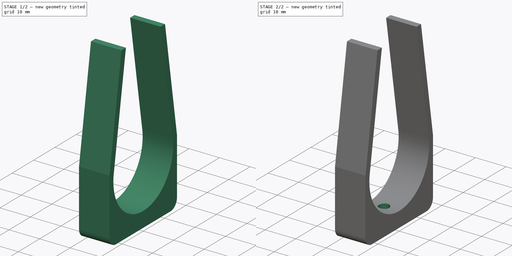
[diagram: build sequence overview — one tinted view per stage of 2, left to right]
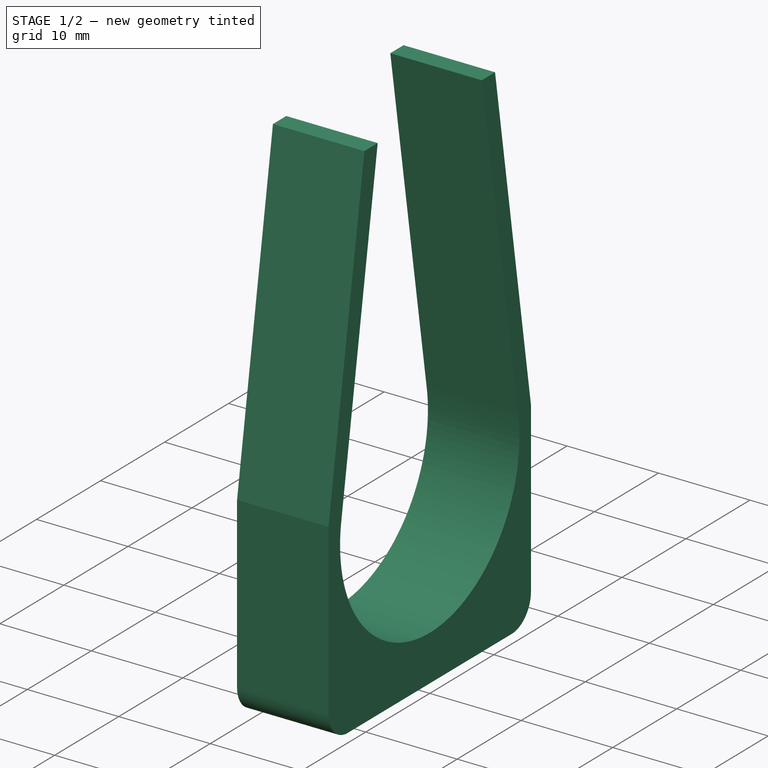
[diagram: stage 1 of 2 — iso view after this stage's code; geometry added in this stage tinted green]
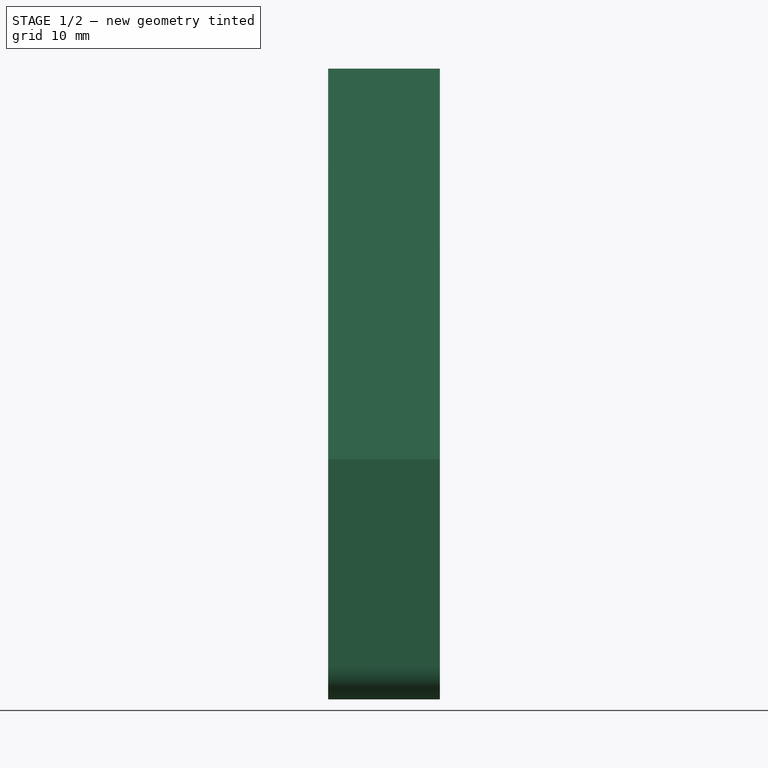
[diagram: stage 1 of 2 — front view after this stage's code; geometry added in this stage tinted green]
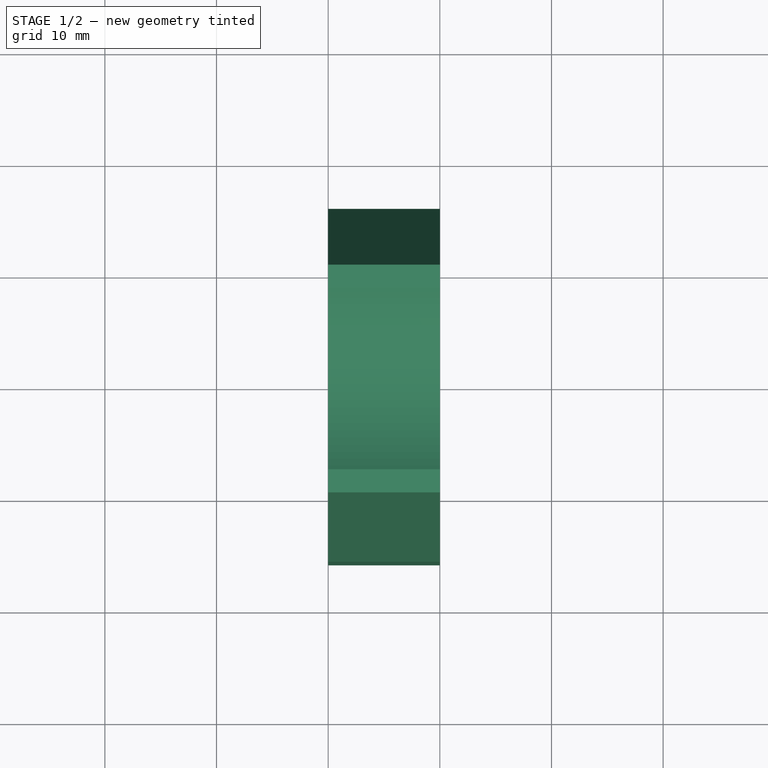
[diagram: stage 1 of 2 — top view after this stage's code; geometry added in this stage tinted green]
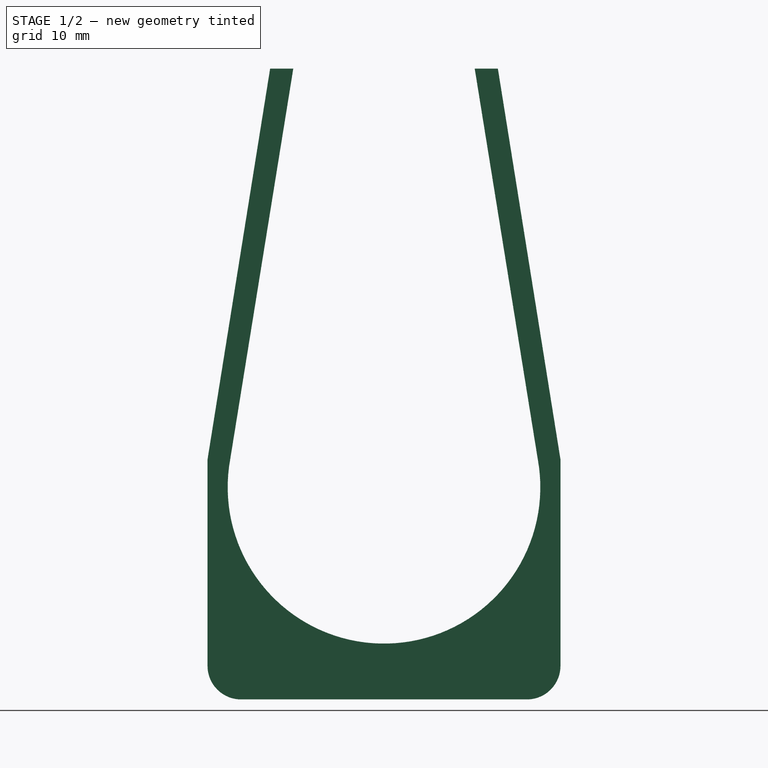
[diagram: stage 1 of 2 — right view after this stage's code; geometry added in this stage tinted green]
FCSTD DOCUMENT  (FreeCAD 0.19R24291 (Git))
Label: Support_batterie
License: All rights reserved
LicenseURL: http://en.wikipedia.org/wiki/All_rights_reserved
objects: Sketcher::SketchObject×2, PartDesign::Pad×1, PartDesign::Fillet×1, PartDesign::Pocket×1, PartDesign::Body×1
note: 9 computed .brp shape members not serialized (recipe doc carries the construction recipe); baked Part::Feature solids carry a one-line shape summary decoded from their .brp

FEATURE [Sketcher::SketchObject] Sketch
  FullyConstrained = true
  MapMode = 5
  Placement = pos=(0,0,0) rot=(0.57735,0.57735,0.57735;2.0944rad)
  Support = -> [YZ_Plane]
  sketch-geometry (19):
    g0: ArcOfCircle CenterX=0 CenterY=0 CenterZ=0 NormalX=0 NormalY=0 NormalZ=1 AngleXU=0 Radius=14 StartAngle=2.96206 EndAngle=6.46272
    g1: LineSegment StartX=-13.775 StartY=2.5 StartZ=0 EndX=13.775 EndY=2.5 EndZ=0
    g2: ArcOfCircle CenterX=0 CenterY=35 CenterZ=0 NormalX=0 NormalY=0 NormalZ=1 AngleXU=0 Radius=8.5 StartAngle=0.298532 EndAngle=2.84306
    g3: LineSegment StartX=-8.12404 StartY=37.5 StartZ=0 EndX=8.12404 EndY=37.5 EndZ=0
    g4: LineSegment StartX=-13.775 StartY=2.5 StartZ=0 EndX=-8.12404 EndY=37.5 EndZ=0
    g5: LineSegment StartX=8.12404 StartY=37.5 StartZ=0 EndX=13.775 EndY=2.5 EndZ=0
    g6: ArcOfCircle CenterX=0 CenterY=35 CenterZ=0 NormalX=0 NormalY=0 NormalZ=1 AngleXU=0 Radius=10.5 StartAngle=0.240404 EndAngle=2.90119
    g7: LineSegment StartX=-8.12404 StartY=37.5 StartZ=0 EndX=-10.198 EndY=37.5 EndZ=0
    g8: LineSegment StartX=10.198 StartY=37.5 StartZ=0 EndX=8.12404 EndY=37.5 EndZ=0
    g9: ArcOfCircle CenterX=0 CenterY=0 CenterZ=0 NormalX=0 NormalY=0 NormalZ=1 AngleXU=0 Radius=16 StartAngle=2.9847 EndAngle=6.44008
    g10: LineSegment StartX=-15.8035 StartY=2.5 StartZ=0 EndX=-13.775 EndY=2.5 EndZ=0
    g11: LineSegment StartX=13.775 StartY=2.5 StartZ=0 EndX=15.8035 EndY=2.5 EndZ=0
    g12: LineSegment StartX=-15.8035 StartY=2.5 StartZ=0 EndX=-10.198 EndY=37.5 EndZ=0
    g13: LineSegment StartX=10.198 StartY=37.5 StartZ=0 EndX=15.8035 EndY=2.5 EndZ=0
    g14: LineSegment StartX=-15.8035 StartY=2.5 StartZ=0 EndX=-15.8035 EndY=-19 EndZ=0
    g15: LineSegment StartX=15.8035 StartY=2.5 StartZ=0 EndX=15.8035 EndY=-19 EndZ=0
    g16: GeomPoint X=0 Y=-14 Z=0
    g17: LineSegment StartX=-15.8035 StartY=-19 StartZ=0 EndX=15.8035 EndY=-19 EndZ=0
    g18: GeomPoint X=0 Y=-19 Z=0
  constraints (49):
    c: Radius(g0) = 14
    c: Coincident(g1,g0)
    c: Coincident(g1,g0)
    c: Horizontal(g1)
    c: Coincident(g0,g-1)
    c: PointOnObject(g2,g-2)
    c: Coincident(g3,g2)
    c: Coincident(g3,g2)
    c: Horizontal(g3)
    c: Radius(g2) = 8.5
    c: Coincident(g4,g0)
    c: Coincident(g4,g2)
    c: Coincident(g5,g2)
    c: Coincident(g5,g0)
    c: DistanceY(g0,g2) = 35
    c: DistanceY(g0,g0) = 2.5
    c: DistanceY(g2,g2) = 2.5
    c: Coincident(g6,g2)
    c: Coincident(g7,g2)
    c: Coincident(g7,g6)
    c: Horizontal(g7)
    c: Coincident(g8,g6)
    c: Coincident(g8,g2)
    c: Horizontal(g8)
    c: Radius(g6) = 10.5
    c: Coincident(g9,g0)
    c: Coincident(g10,g9)
    c: Coincident(g10,g0)
    c: Horizontal(g10)
    c: Coincident(g11,g0)
    c: Coincident(g11,g9)
    c: Horizontal(g11)
    c: Radius(g9) = 16
    c: Coincident(g12,g9)
    c: Coincident(g12,g6)
    c: Coincident(g13,g6)
    c: Coincident(g13,g9)
    c: Coincident(g14,g9)
    c: Vertical(g14)
    c: Coincident(g15,g9)
    c: Vertical(g15)
    c: PointOnObject(g16,g0)
    c: Coincident(g17,g14)
    c: Coincident(g17,g15)
    c: Horizontal(g17)
    c: PointOnObject(g18,g17)
    c: Vertical(g16,g0)
    c: Vertical(g18,g16)
    c: DistanceY(g18,g16) = 5
FEATURE [PartDesign::Pad] Pad  label="base_sup"
  Direction = (1,1,1)
  Length = 10
  Length2 = 100
  Placement = pos=(0,0,0) rot=(0.57735,0.57735,0.57735;2.0944rad)
  Profile = -> Sketch
  Type = 0
FEATURE [PartDesign::Fillet] Fillet
  Base = -> Pad [Edge17,Edge14]
  BaseFeature = -> Pad
  Placement = pos=(0,0,0) rot=(0.57735,0.57735,0.57735;2.0944rad)
  Radius = 3
  SupportTransform = false
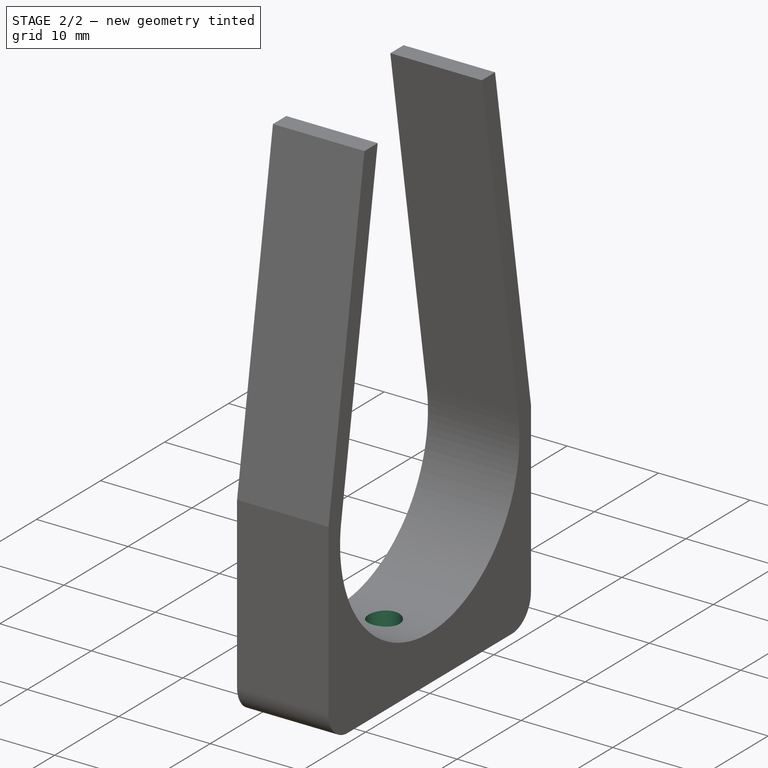
[diagram: stage 2 of 2 — iso view after this stage's code; geometry added in this stage tinted green]
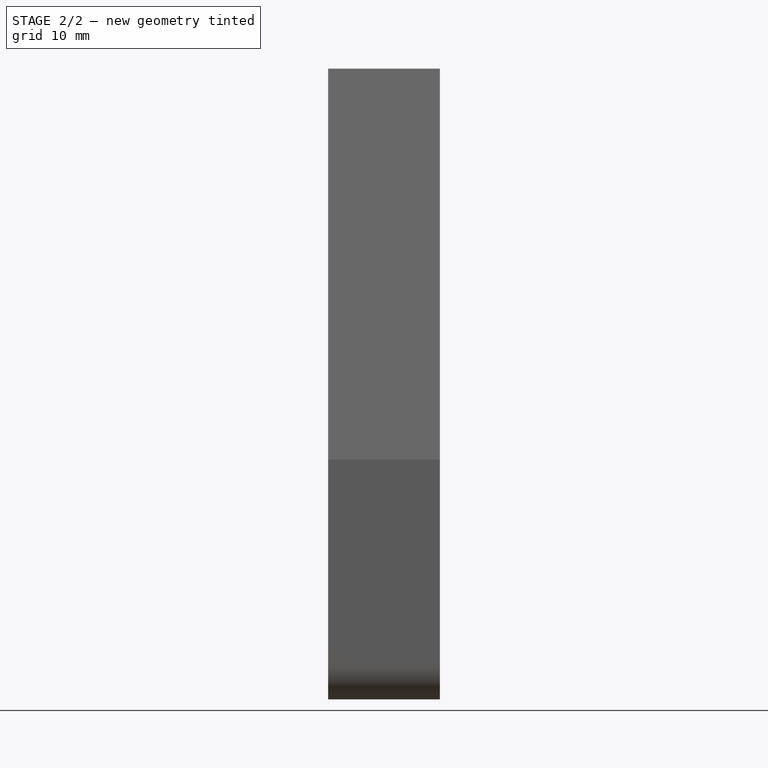
[diagram: stage 2 of 2 — front view after this stage's code; geometry added in this stage tinted green]
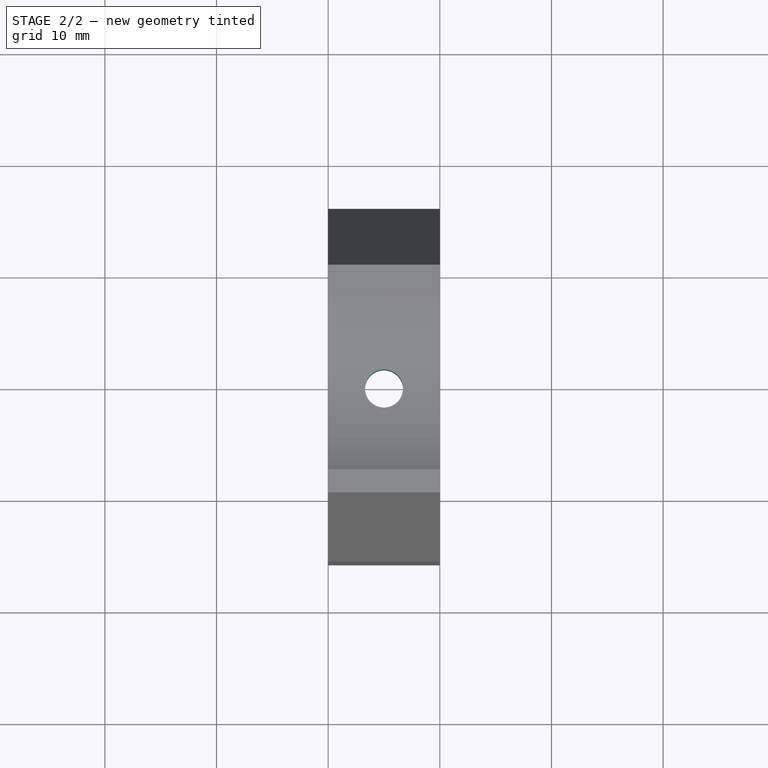
[diagram: stage 2 of 2 — top view after this stage's code; geometry added in this stage tinted green]
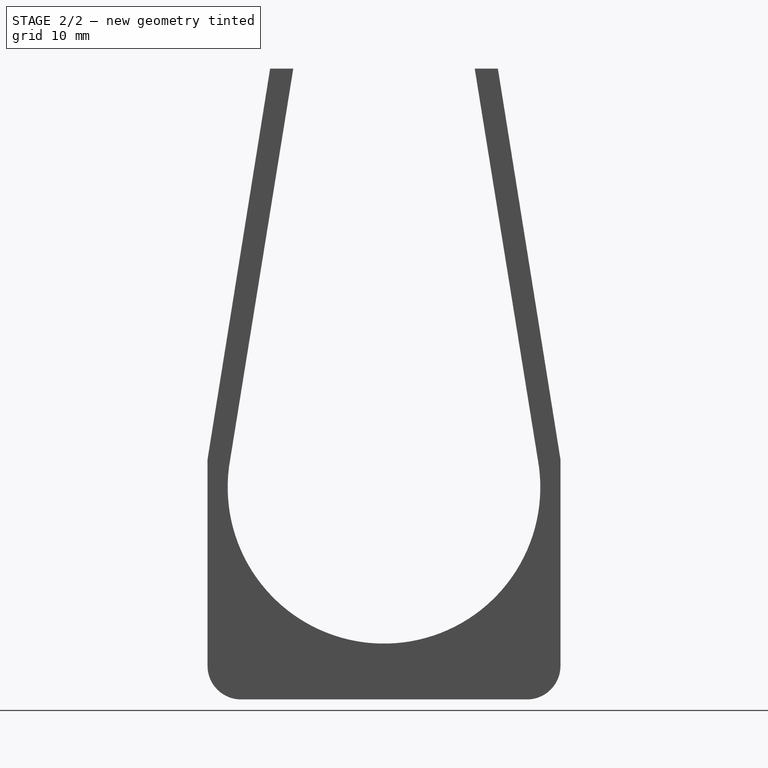
[diagram: stage 2 of 2 — right view after this stage's code; geometry added in this stage tinted green]
FEATURE [Sketcher::SketchObject] Sketch001
  ExternalGeometry = -> [Fillet]
  FullyConstrained = true
  MapMode = 5
  Placement = pos=(7.4e-15,-1.05e-14,-19) rot=(0.707107,0.707107,0;3.14159rad)
  Support = -> [Fillet]
  sketch-geometry (2):
    g0: LineSegment StartX=-12.8035 StartY=5 StartZ=0 EndX=12.8035 EndY=5 EndZ=0
    g1: Circle CenterX=0 CenterY=5 CenterZ=0 NormalX=0 NormalY=0 NormalZ=1 AngleXU=0 Radius=1.7
  constraints (6):
    c: PointOnObject(g0,g-4)
    c: Horizontal(g0)
    c: Symmetric(g-3,g-3,g0)
    c: PointOnObject(g1,g0)
    c: Vertical(g1,g-1)
    c: Radius(g1) = 1.7
FEATURE [PartDesign::Pocket] Pocket  label="trou_m3"
  BaseFeature = -> Fillet
  Length = 5
  Length2 = 100
  Placement = pos=(0,0,0) rot=(0.57735,0.57735,0.57735;2.0944rad)
  Profile = -> Sketch001
  Type = 1
FEATURE [PartDesign::Body] Body
  Group = -> [Sketch,Pad,Fillet,Sketch001,Pocket]
  Origin = -> Origin
  Tip = -> Pocket
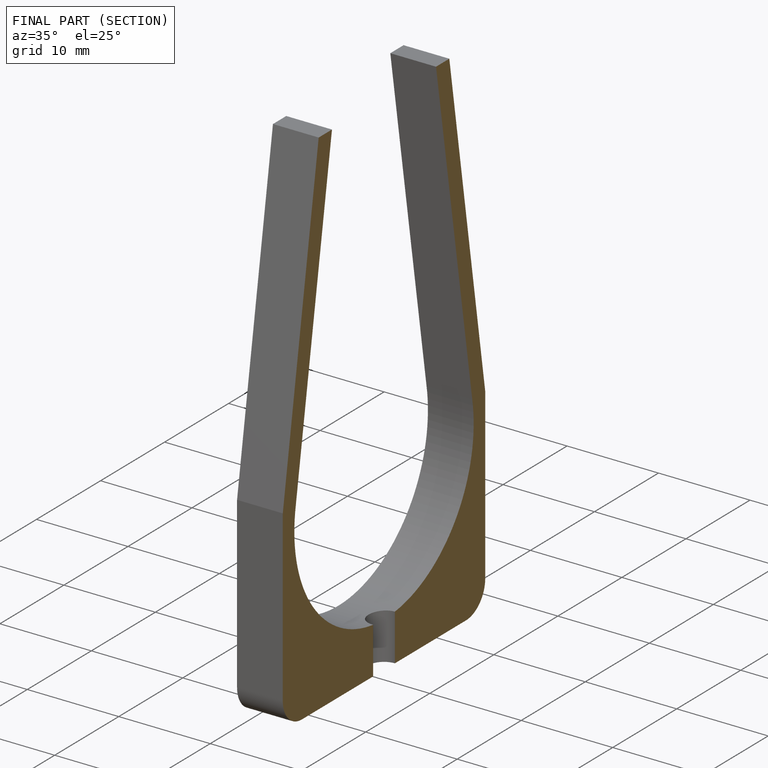
[diagram: finished part — half-section view (interior)]
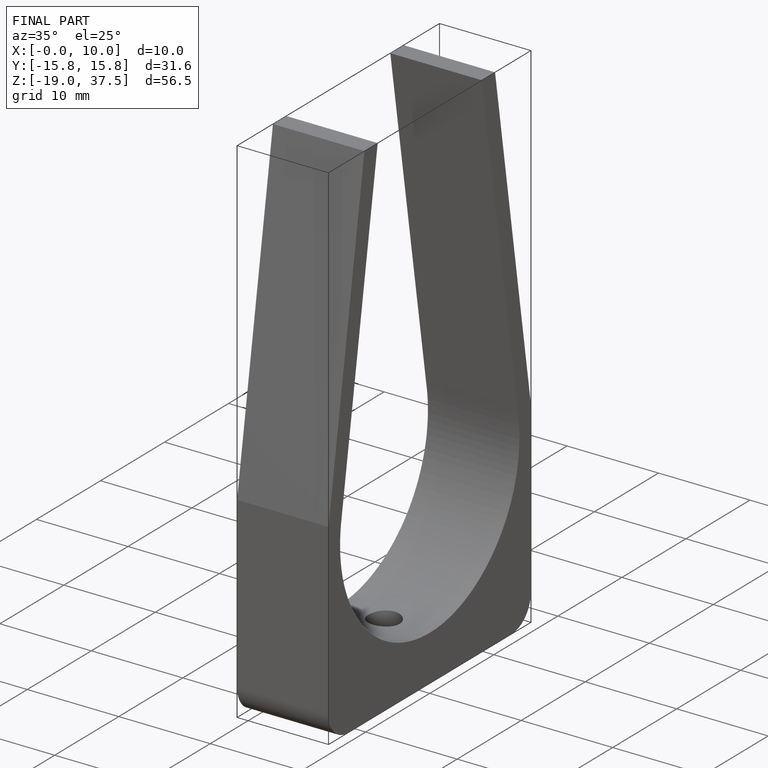
[diagram: finished part — iso view with bounding-box wireframe]
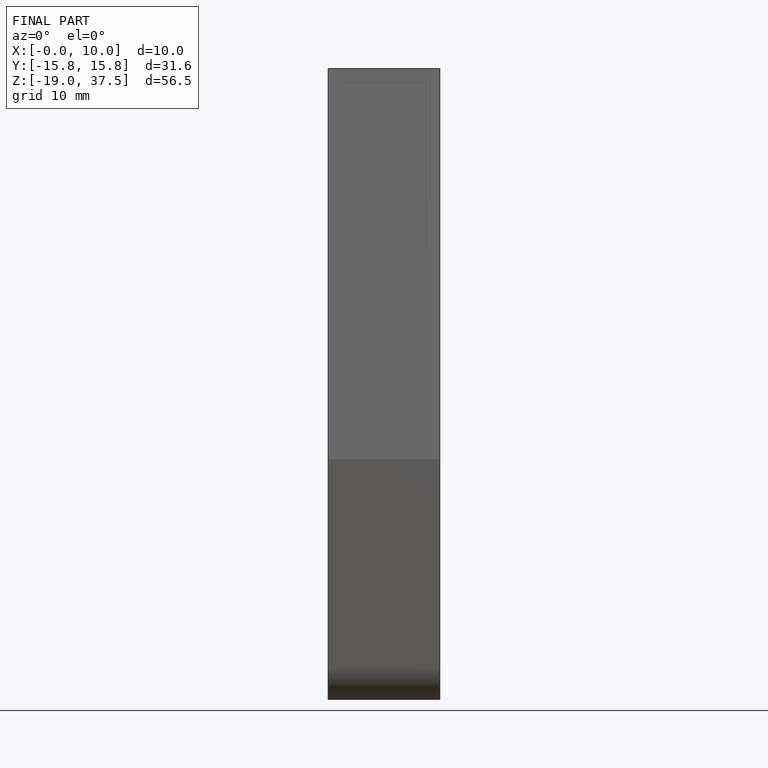
[diagram: finished part — front view with bounding-box wireframe]
